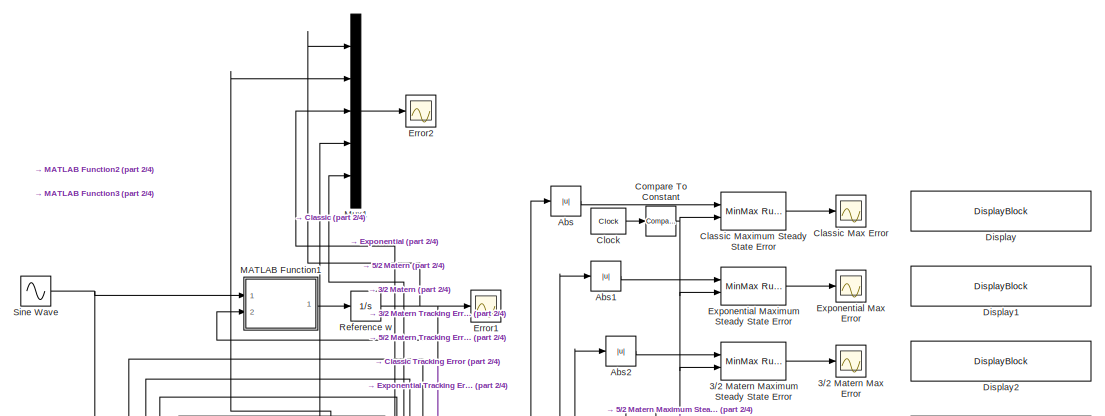
[diagram: root canvas - part 1/4, full width, top band]
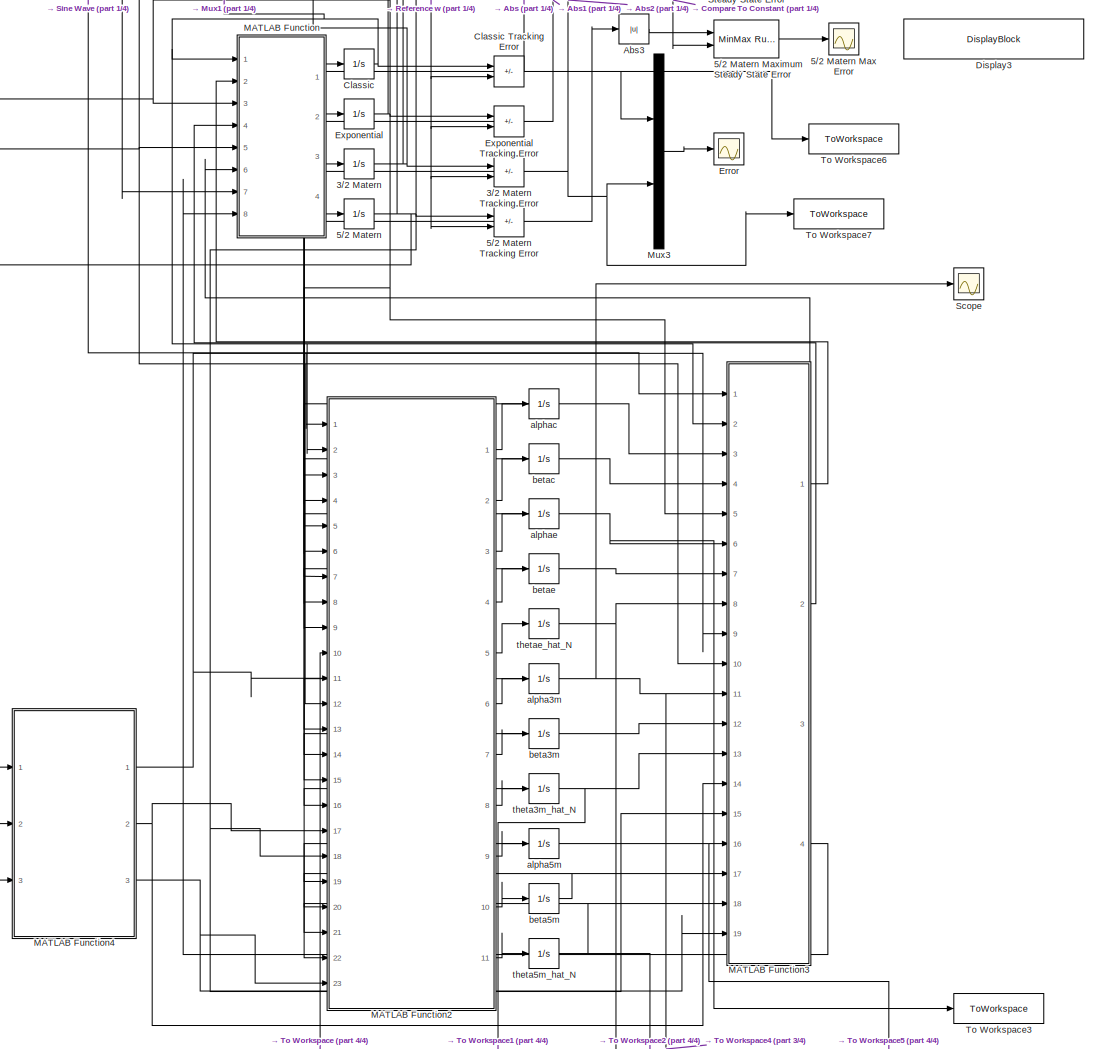
[diagram: root canvas - part 2/4, full width, middle band]
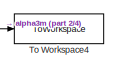
[diagram: root canvas - part 3/4, bottom right region]
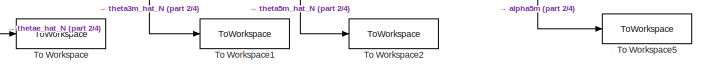
[diagram: root canvas - part 4/4, bottom center region]
MODEL slx_02746e379150
KIND model
CONFIG AbsTol = auto
CONFIG EnableMultiTasking = off
CONFIG FixedStep = auto
CONFIG MaxStep = auto
CONFIG MinStep = auto
CONFIG RelTol = 1e-3
CONFIG SampleTimeConstraint = Unconstrained
CONFIG SolverName = ode45
CONFIG StartTime = 0.0
CONFIG StopTime = 30
BLOCK [Integrator] 3//2 Matern
  InitialCondition = x0
  Ports = [1, 1]
BLOCK [Scope] 3//2 Matern Max Error
  Floating = off
  NumInputPorts = 1
  Ports = [1]
  ScopeSpecificationString = Simulink.scopes.TimeScopeBlockCfg('CurrentConfiguration', extmgr.ConfigurationSet(extmgr.Configuration('Core','General UI',true),extmgr.Configuration('Core','Source UI',true),extmgr.Configuration('Sources','WiredSimulink',true,'DataLoggingVariableName','ScopeData3'),extmgr.Configuration('Visuals','Time Domain',true,'SerializedDisplays',{struct('MinYLimReal','-0.10222','MaxYLimReal','0.91999','YLab...<+1436ch>
BLOCK [Reference] 3//2 Matern Maximum Steady State Error  REF=simulink/Math
Operations/MinMax
Running
Resettable
  Ports = [2, 1]
  SourceBlock = simulink/Math\nOperations/MinMax\nRunning\nResettable
  SourceProductBaseCode = SL
  SourceType = MinMax Running Resettable
BLOCK [Sum] 3//2 Matern Tracking Error
  IconShape = rectangular
  Inputs = +-
  Ports = [2, 1]
BLOCK [Integrator] 5//2 Matern
  InitialCondition = x0
  Ports = [1, 1]
BLOCK [Scope] 5//2 Matern Max Error
  Floating = off
  NumInputPorts = 1
  Ports = [1]
  ScopeSpecificationString = Simulink.scopes.TimeScopeBlockCfg('CurrentConfiguration', extmgr.ConfigurationSet(extmgr.Configuration('Core','General UI',true),extmgr.Configuration('Core','Source UI',true),extmgr.Configuration('Sources','WiredSimulink',true,'DataLoggingVariableName','ScopeData4'),extmgr.Configuration('Visuals','Time Domain',true,'SerializedDisplays',{struct('MinYLimReal','-0.12073','MaxYLimReal','1.08658','YLab...<+1436ch>
BLOCK [Reference] 5//2 Matern Maximum Steady State Error  REF=simulink/Math
Operations/MinMax
Running
Resettable
  Ports = [2, 1]
  SourceBlock = simulink/Math\nOperations/MinMax\nRunning\nResettable
  SourceProductBaseCode = SL
  SourceType = MinMax Running Resettable
BLOCK [Sum] 5//2 Matern Tracking Error
  IconShape = rectangular
  Inputs = +-
  Ports = [2, 1]
BLOCK [Abs] Abs
  SaturateOnIntegerOverflow = off
BLOCK [Abs] Abs1
  SaturateOnIntegerOverflow = off
BLOCK [Abs] Abs2
  SaturateOnIntegerOverflow = off
BLOCK [Abs] Abs3
  SaturateOnIntegerOverflow = off
BLOCK [Integrator] Classic
  InitialCondition = x0
  Ports = [1, 1]
BLOCK [Scope] Classic Max Error
  Floating = off
  NumInputPorts = 1
  Ports = [1]
  ScopeSpecificationString = Simulink.scopes.TimeScopeBlockCfg('CurrentConfiguration', extmgr.ConfigurationSet(extmgr.Configuration('Core','General UI',true),extmgr.Configuration('Core','Source UI',true),extmgr.Configuration('Sources','WiredSimulink',true,'DataLoggingVariableName','ScopeData1'),extmgr.Configuration('Visuals','Time Domain',true,'SerializedDisplays',{struct('MinYLimReal','-0.11328','MaxYLimReal','1.01951','YLab...<+1433ch>
BLOCK [Reference] Classic Maximum Steady State Error  REF=simulink/Math
Operations/MinMax
Running
Resettable
  Ports = [2, 1]
  SourceBlock = simulink/Math\nOperations/MinMax\nRunning\nResettable
  SourceProductBaseCode = SL
  SourceType = MinMax Running Resettable
BLOCK [Sum] Classic Tracking Error
  IconShape = rectangular
  Inputs = +-
  Ports = [2, 1]
BLOCK [Clock] Clock
  DisplayTime = on
BLOCK [Reference] Compare To Constant  REF=simulink/Logic and Bit
Operations/Compare
To Constant
  Ports = [1, 1]
  SourceBlock = simulink/Logic and Bit\nOperations/Compare\nTo Constant
  SourceProductBaseCode = SL
  SourceType = Compare To Constant
BLOCK [DisplayBlock] Display
  Format = short
  LabelPosition = Hide
  Transparency = 1
BLOCK [DisplayBlock] Display1
  Format = short
  LabelPosition = Hide
  Transparency = 1
BLOCK [DisplayBlock] Display2
  Format = short
  LabelPosition = Hide
  Transparency = 1
BLOCK [DisplayBlock] Display3
  Format = short
  LabelPosition = Hide
  Transparency = 1
BLOCK [Scope] Error
  Floating = off
  NumInputPorts = 1
  Ports = [1]
  ScopeSpecificationString = Simulink.scopes.TimeScopeBlockCfg('CurrentConfiguration', extmgr.ConfigurationSet(extmgr.Configuration('Core','General UI',true,'FigureColor',[1 1 1]),extmgr.Configuration('Core','Source UI',true),extmgr.Configuration('Sources','WiredSimulink',true,'DataLoggingVariableName','ScopeData1'),extmgr.Configuration('Visuals','Time Domain',true,'SerializedDisplays',{struct('MinYLimReal','-2.50653','MaxYLi...<+2006ch>
BLOCK [Scope] Error1
  Floating = off
  NumInputPorts = 1
  Ports = [1]
  ScopeSpecificationString = Simulink.scopes.TimeScopeBlockCfg('CurrentConfiguration', extmgr.ConfigurationSet(extmgr.Configuration('Core','General UI',true,'FigureColor',[1 1 1]),extmgr.Configuration('Core','Source UI',true),extmgr.Configuration('Sources','WiredSimulink',true,'DataLoggingVariableName','ScopeData1'),extmgr.Configuration('Visuals','Time Domain',true,'SerializedDisplays',{struct('MinYLimReal','-12.43782','MaxYL...<+1970ch>
BLOCK [Scope] Error2
  Floating = off
  NumInputPorts = 1
  Ports = [1]
  ScopeSpecificationString = Simulink.scopes.TimeScopeBlockCfg('CurrentConfiguration', extmgr.ConfigurationSet(extmgr.Configuration('Core','General UI',true,'FigureColor',[1 1 1]),extmgr.Configuration('Core','Source UI',true),extmgr.Configuration('Sources','WiredSimulink',true,'DataLoggingVariableName','ScopeData1'),extmgr.Configuration('Visuals','Time Domain',true,'SerializedDisplays',{struct('MinYLimReal','-12.94159','MaxYL...<+2186ch>
BLOCK [Integrator] Exponential
  InitialCondition = x0
  Ports = [1, 1]
BLOCK [Scope] Exponential Max Error
  Floating = off
  NumInputPorts = 1
  Ports = [1]
  ScopeSpecificationString = Simulink.scopes.TimeScopeBlockCfg('CurrentConfiguration', extmgr.ConfigurationSet(extmgr.Configuration('Core','General UI',true),extmgr.Configuration('Core','Source UI',true),extmgr.Configuration('Sources','WiredSimulink',true,'DataLoggingVariableName','ScopeData2'),extmgr.Configuration('Visuals','Time Domain',true,'SerializedDisplays',{struct('MinYLimReal','-0.04849','MaxYLimReal','0.4364','YLabe...<+1433ch>
BLOCK [Reference] Exponential Maximum Steady State Error  REF=simulink/Math
Operations/MinMax
Running
Resettable
  Ports = [2, 1]
  SourceBlock = simulink/Math\nOperations/MinMax\nRunning\nResettable
  SourceProductBaseCode = SL
  SourceType = MinMax Running Resettable
BLOCK [Sum] Exponential Tracking Error
  IconShape = rectangular
  Inputs = +-
  Ports = [2, 1]
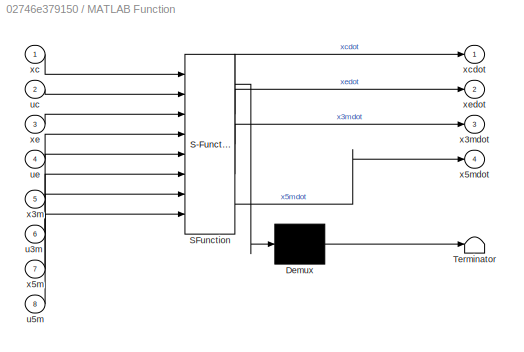
BLOCK [SubSystem] MATLAB Function
  ErrorFcn = Stateflow.Translate.translate
  PermitHierarchicalResolution = ExplicitOnly
  Ports = [8, 4]
  RequestExecContextInheritance = off
  SFBlockType = MATLAB Function
  TreatAsAtomicUnit = on
BLOCK [Demux] MATLAB Function/ Demux 
  Outputs = 1
  Ports = [1, 1]
BLOCK [S-Function] MATLAB Function/ SFunction 
  EnableBusSupport = on
  FunctionName = sf_sfun
  Parameters = astar,bstar
  PortCounts = [8 5]
  Ports = [8, 5]
  SFcnIsStateOwnerBlock = off
  SFunctionDeploymentMode = off
  Tag = Stateflow S-Function 2
BLOCK [Terminator] MATLAB Function/ Terminator 
BLOCK [Inport] MATLAB Function/u3m
  Port = 6
BLOCK [Inport] MATLAB Function/u5m
  Port = 8
BLOCK [Inport] MATLAB Function/uc
  Port = 2
BLOCK [Inport] MATLAB Function/ue
  Port = 4
BLOCK [Inport] MATLAB Function/x3m
  Port = 5
BLOCK [Outport] MATLAB Function/x3mdot
  Port = 3
BLOCK [Inport] MATLAB Function/x5m
  Port = 7
BLOCK [Outport] MATLAB Function/x5mdot
  Port = 4
BLOCK [Inport] MATLAB Function/xc
BLOCK [Outport] MATLAB Function/xcdot
BLOCK [Inport] MATLAB Function/xe
  Port = 3
BLOCK [Outport] MATLAB Function/xedot
  Port = 2
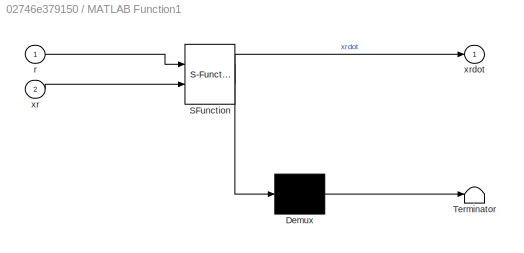
BLOCK [SubSystem] MATLAB Function1
  ErrorFcn = Stateflow.Translate.translate
  PermitHierarchicalResolution = ExplicitOnly
  Ports = [2, 1]
  RequestExecContextInheritance = off
  SFBlockType = MATLAB Function
  TreatAsAtomicUnit = on
BLOCK [Demux] MATLAB Function1/ Demux 
  Outputs = 1
  Ports = [1, 1]
BLOCK [S-Function] MATLAB Function1/ SFunction 
  EnableBusSupport = on
  FunctionName = sf_sfun
  Parameters = ar,br
  PortCounts = [2 2]
  Ports = [2, 2]
  SFcnIsStateOwnerBlock = off
  SFunctionDeploymentMode = off
  Tag = Stateflow S-Function 1
BLOCK [Terminator] MATLAB Function1/ Terminator 
BLOCK [Inport] MATLAB Function1/r
BLOCK [Inport] MATLAB Function1/xr
  Port = 2
BLOCK [Outport] MATLAB Function1/xrdot
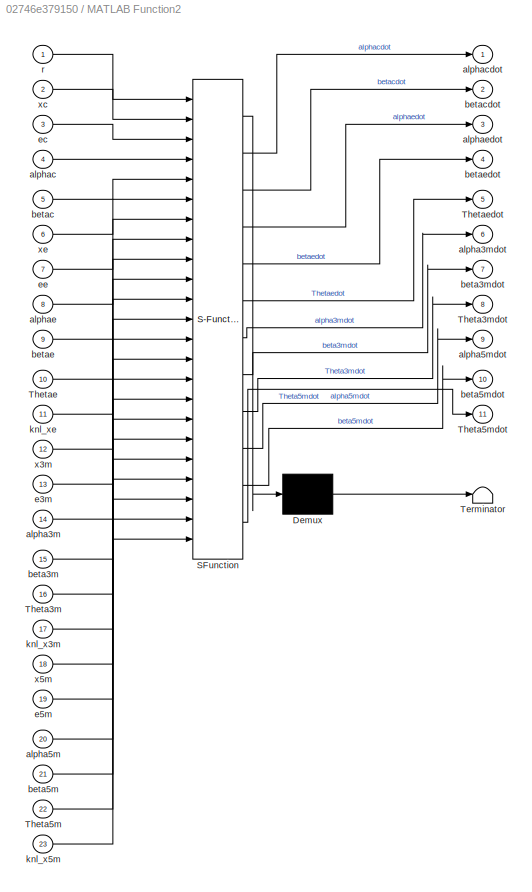
BLOCK [SubSystem] MATLAB Function2
  ErrorFcn = Stateflow.Translate.translate
  PermitHierarchicalResolution = ExplicitOnly
  Ports = [23, 11]
  RequestExecContextInheritance = off
  SFBlockType = MATLAB Function
  TreatAsAtomicUnit = on
BLOCK [Demux] MATLAB Function2/ Demux 
  Outputs = 1
  Ports = [1, 1]
BLOCK [S-Function] MATLAB Function2/ SFunction 
  EnableBusSupport = on
  FunctionName = sf_sfun
  Parameters = epsilon3m,epsilon5m,epsilonc,epsilone,ga,gb,gf,inv_k_xi_xi3m,inv_k_xi_xi5m,inv_k_xi_xie,sigma
  PortCounts = [23 12]
  Ports = [23, 12]
  SFcnIsStateOwnerBlock = off
  SFunctionDeploymentMode = off
  Tag = Stateflow S-Function 3
BLOCK [Terminator] MATLAB Function2/ Terminator 
BLOCK [Inport] MATLAB Function2/Theta3m
  Port = 16
BLOCK [Outport] MATLAB Function2/Theta3mdot
  Port = 8
BLOCK [Inport] MATLAB Function2/Theta5m
  Port = 22
BLOCK [Outport] MATLAB Function2/Theta5mdot
  Port = 11
BLOCK [Inport] MATLAB Function2/Thetae
  Port = 10
BLOCK [Outport] MATLAB Function2/Thetaedot
  Port = 5
BLOCK [Inport] MATLAB Function2/alpha3m
  Port = 14
BLOCK [Outport] MATLAB Function2/alpha3mdot
  Port = 6
BLOCK [Inport] MATLAB Function2/alpha5m
  Port = 20
BLOCK [Outport] MATLAB Function2/alpha5mdot
  Port = 9
BLOCK [Inport] MATLAB Function2/alphac
  Port = 4
BLOCK [Outport] MATLAB Function2/alphacdot
BLOCK [Inport] MATLAB Function2/alphae
  Port = 8
BLOCK [Outport] MATLAB Function2/alphaedot
  Port = 3
BLOCK [Inport] MATLAB Function2/beta3m
  Port = 15
BLOCK [Outport] MATLAB Function2/beta3mdot
  Port = 7
BLOCK [Inport] MATLAB Function2/beta5m
  Port = 21
BLOCK [Outport] MATLAB Function2/beta5mdot
  Port = 10
BLOCK [Inport] MATLAB Function2/betac
  Port = 5
BLOCK [Outport] MATLAB Function2/betacdot
  Port = 2
BLOCK [Inport] MATLAB Function2/betae
  Port = 9
BLOCK [Outport] MATLAB Function2/betaedot
  Port = 4
BLOCK [Inport] MATLAB Function2/e3m
  Port = 13
BLOCK [Inport] MATLAB Function2/e5m
  Port = 19
BLOCK [Inport] MATLAB Function2/ec
  Port = 3
BLOCK [Inport] MATLAB Function2/ee
  Port = 7
BLOCK [Inport] MATLAB Function2/knl_x3m
  Port = 17
BLOCK [Inport] MATLAB Function2/knl_x5m
  Port = 23
BLOCK [Inport] MATLAB Function2/knl_xe
  Port = 11
BLOCK [Inport] MATLAB Function2/r
BLOCK [Inport] MATLAB Function2/x3m
  Port = 12
BLOCK [Inport] MATLAB Function2/x5m
  Port = 18
BLOCK [Inport] MATLAB Function2/xc
  Port = 2
BLOCK [Inport] MATLAB Function2/xe
  Port = 6
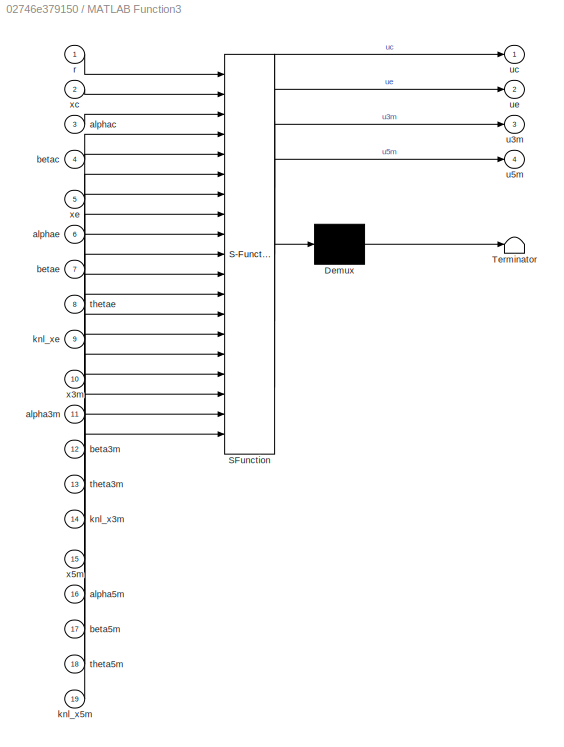
BLOCK [SubSystem] MATLAB Function3
  ErrorFcn = Stateflow.Translate.translate
  PermitHierarchicalResolution = ExplicitOnly
  Ports = [19, 4]
  RequestExecContextInheritance = off
  SFBlockType = MATLAB Function
  TreatAsAtomicUnit = on
BLOCK [Demux] MATLAB Function3/ Demux 
  Outputs = 1
  Ports = [1, 1]
BLOCK [S-Function] MATLAB Function3/ SFunction 
  EnableBusSupport = on
  FunctionName = sf_sfun
  PortCounts = [19 5]
  Ports = [19, 5]
  SFcnIsStateOwnerBlock = off
  SFunctionDeploymentMode = off
  Tag = Stateflow S-Function 4
BLOCK [Terminator] MATLAB Function3/ Terminator 
BLOCK [Inport] MATLAB Function3/alpha3m
  Port = 11
BLOCK [Inport] MATLAB Function3/alpha5m
  Port = 16
BLOCK [Inport] MATLAB Function3/alphac
  Port = 3
BLOCK [Inport] MATLAB Function3/alphae
  Port = 6
BLOCK [Inport] MATLAB Function3/beta3m
  Port = 12
BLOCK [Inport] MATLAB Function3/beta5m
  Port = 17
BLOCK [Inport] MATLAB Function3/betac
  Port = 4
BLOCK [Inport] MATLAB Function3/betae
  Port = 7
BLOCK [Inport] MATLAB Function3/knl_x3m
  Port = 14
BLOCK [Inport] MATLAB Function3/knl_x5m
  Port = 19
BLOCK [Inport] MATLAB Function3/knl_xe
  Port = 9
BLOCK [Inport] MATLAB Function3/r
BLOCK [Inport] MATLAB Function3/theta3m
  Port = 13
BLOCK [Inport] MATLAB Function3/theta5m
  Port = 18
BLOCK [Inport] MATLAB Function3/thetae
  Port = 8
BLOCK [Outport] MATLAB Function3/u3m
  Port = 3
BLOCK [Outport] MATLAB Function3/u5m
  Port = 4
BLOCK [Outport] MATLAB Function3/uc
BLOCK [Outport] MATLAB Function3/ue
  Port = 2
BLOCK [Inport] MATLAB Function3/x3m
  Port = 10
BLOCK [Inport] MATLAB Function3/x5m
  Port = 15
BLOCK [Inport] MATLAB Function3/xc
  Port = 2
BLOCK [Inport] MATLAB Function3/xe
  Port = 5
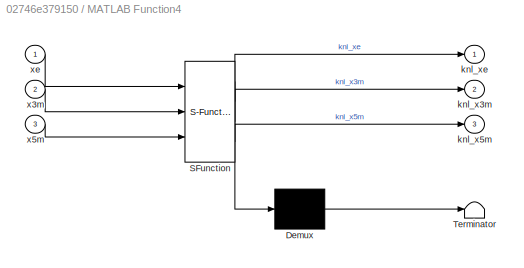
BLOCK [SubSystem] MATLAB Function4
  ErrorFcn = Stateflow.Translate.translate
  PermitHierarchicalResolution = ExplicitOnly
  Ports = [3, 3]
  RequestExecContextInheritance = off
  SFBlockType = MATLAB Function
  TreatAsAtomicUnit = on
BLOCK [Demux] MATLAB Function4/ Demux 
  Outputs = 1
  Ports = [1, 1]
BLOCK [S-Function] MATLAB Function4/ SFunction 
  EnableBusSupport = on
  FunctionName = sf_sfun
  Parameters = basiscenter,hype,l,sig
  PortCounts = [3 4]
  Ports = [3, 4]
  SFcnIsStateOwnerBlock = off
  SFunctionDeploymentMode = off
  Tag = Stateflow S-Function 5
BLOCK [Terminator] MATLAB Function4/ Terminator 
BLOCK [Outport] MATLAB Function4/knl_x3m
  Port = 2
BLOCK [Outport] MATLAB Function4/knl_x5m
  Port = 3
BLOCK [Outport] MATLAB Function4/knl_xe
BLOCK [Inport] MATLAB Function4/x3m
  Port = 2
BLOCK [Inport] MATLAB Function4/x5m
  Port = 3
BLOCK [Inport] MATLAB Function4/xe
BLOCK [Mux] Mux1
  DisplayOption = bar
  Inputs = 5
  Ports = [5, 1]
BLOCK [Mux] Mux3
  DisplayOption = bar
  Inputs = 2
  Ports = [2, 1]
BLOCK [Integrator] Reference w
  InitialCondition = xr0
  Ports = [1, 1]
BLOCK [Scope] Scope
  Floating = off
  NumInputPorts = 1
  Ports = [1]
  ScopeSpecificationString = Simulink.scopes.TimeScopeBlockCfg('CurrentConfiguration', extmgr.ConfigurationSet(extmgr.Configuration('Core','General UI',true),extmgr.Configuration('Core','Source UI',true),extmgr.Configuration('Sources','WiredSimulink',true,'DataLoggingVariableName','ScopeData1'),extmgr.Configuration('Visuals','Time Domain',true,'SerializedDisplays',{struct('MinYLimReal','-7.07838','MaxYLimReal','0.84417','YLab...<+1366ch>
BLOCK [Sin] Sine Wave
  Amplitude = 10
  Frequency = 2
  Ports = [0, 1]
  SampleTime = 0
BLOCK [ToWorkspace] To Workspace
  FixptAsFi = on
  MaxDataPoints = inf
  Ports = [1]
  SampleTime = -1
  SaveFormat = Timeseries
  VariableName = Theta_E
BLOCK [ToWorkspace] To Workspace1
  FixptAsFi = on
  MaxDataPoints = inf
  Ports = [1]
  SampleTime = -1
  SaveFormat = Timeseries
  VariableName = Theta_3m
BLOCK [ToWorkspace] To Workspace2
  FixptAsFi = on
  MaxDataPoints = inf
  Ports = [1]
  SampleTime = -1
  SaveFormat = Timeseries
  VariableName = Theta_5m
BLOCK [ToWorkspace] To Workspace3
  FixptAsFi = on
  MaxDataPoints = inf
  Ports = [1]
  SampleTime = -1
  SaveFormat = Timeseries
  VariableName = AlphaE
BLOCK [ToWorkspace] To Workspace4
  FixptAsFi = on
  MaxDataPoints = inf
  Ports = [1]
  SampleTime = -1
  SaveFormat = Timeseries
  VariableName = Alpha3m
BLOCK [ToWorkspace] To Workspace5
  FixptAsFi = on
  MaxDataPoints = inf
  Ports = [1]
  SampleTime = -1
  SaveFormat = Timeseries
  VariableName = Alpha5m
BLOCK [ToWorkspace] To Workspace6
  FixptAsFi = on
  MaxDataPoints = inf
  Ports = [1]
  SampleTime = -1
  SaveFormat = Timeseries
  VariableName = Err_C
BLOCK [ToWorkspace] To Workspace7
  FixptAsFi = on
  MaxDataPoints = inf
  Ports = [1]
  SampleTime = -1
  SaveFormat = Timeseries
  VariableName = Err_3m
BLOCK [Integrator] alpha3m
  InitialCondition = alpha0
  Ports = [1, 1]
BLOCK [Integrator] alpha5m
  InitialCondition = alpha0
  Ports = [1, 1]
BLOCK [Integrator] alphac
  InitialCondition = alpha0
  Ports = [1, 1]
BLOCK [Integrator] alphae
  InitialCondition = alpha0
  Ports = [1, 1]
BLOCK [Integrator] beta3m
  InitialCondition = beta0
  Ports = [1, 1]
BLOCK [Integrator] beta5m
  InitialCondition = beta0
  Ports = [1, 1]
BLOCK [Integrator] betac
  InitialCondition = beta0
  Ports = [1, 1]
BLOCK [Integrator] betae
  InitialCondition = beta0
  Ports = [1, 1]
BLOCK [Integrator] theta3m_hat_N
  Ports = [1, 1]
BLOCK [Integrator] theta5m_hat_N
  Ports = [1, 1]
BLOCK [Integrator] thetae_hat_N
  Ports = [1, 1]
LINE 3//2 Matern Maximum Steady State Error:1 -> 3//2 Matern Max Error:1
NET 3//2 Matern Tracking Error:1 -> Abs2:1, MATLAB Function2:13, Mux3:2, To Workspace7:1
NET 3//2 Matern:1 -> 3//2 Matern Tracking Error:1, MATLAB Function2:12, MATLAB Function3:10, MATLAB Function4:2, MATLAB Function:5, Mux1:4
LINE 5//2 Matern Maximum Steady State Error:1 -> 5//2 Matern Max Error:1
NET 5//2 Matern Tracking Error:1 -> Abs3:1, MATLAB Function2:19
NET 5//2 Matern:1 -> 5//2 Matern Tracking Error:1, MATLAB Function2:18, MATLAB Function3:15, MATLAB Function4:3, MATLAB Function:7, Mux1:5
LINE Abs1:1 -> Exponential Maximum Steady State Error:1
LINE Abs2:1 -> 3//2 Matern Maximum Steady State Error:1
LINE Abs3:1 -> 5//2 Matern Maximum Steady State Error:1
LINE Abs:1 -> Classic Maximum Steady State Error:1
LINE Classic Maximum Steady State Error:1 -> Classic Max Error:1
NET Classic Tracking Error:1 -> Abs:1, MATLAB Function2:3, Mux3:1, To Workspace6:1
NET Classic:1 -> Classic Tracking Error:1, MATLAB Function2:2, MATLAB Function3:2, MATLAB Function:1, Mux1:2
LINE Clock:1 -> Compare To Constant:1
NET Compare To Constant:1 -> 3//2 Matern Maximum Steady State Error:2, 5//2 Matern Maximum Steady State Error:2, Classic Maximum Steady State Error:2, Exponential Maximum Steady State Error:2
LINE Exponential Maximum Steady State Error:1 -> Exponential Max Error:1
NET Exponential Tracking Error:1 -> Abs1:1, MATLAB Function2:7
NET Exponential:1 -> Exponential Tracking Error:1, MATLAB Function2:6, MATLAB Function3:5, MATLAB Function4:1, MATLAB Function:3, Mux1:3
LINE MATLAB Function1:1 -> Reference w:1
LINE MATLAB Function2:1 -> alphac:1
LINE MATLAB Function2:10 -> beta5m:1
LINE MATLAB Function2:11 -> theta5m_hat_N:1
LINE MATLAB Function2:2 -> betac:1
LINE MATLAB Function2:3 -> alphae:1
LINE MATLAB Function2:4 -> betae:1
LINE MATLAB Function2:5 -> thetae_hat_N:1
LINE MATLAB Function2:6 -> alpha3m:1
LINE MATLAB Function2:7 -> beta3m:1
LINE MATLAB Function2:8 -> theta3m_hat_N:1
LINE MATLAB Function2:9 -> alpha5m:1
LINE MATLAB Function3:1 -> MATLAB Function:2
LINE MATLAB Function3:2 -> MATLAB Function:4
LINE MATLAB Function3:3 -> MATLAB Function:6
LINE MATLAB Function3:4 -> MATLAB Function:8
NET MATLAB Function4:1 -> MATLAB Function2:11, MATLAB Function3:9
NET MATLAB Function4:2 -> MATLAB Function2:17, MATLAB Function3:14
NET MATLAB Function4:3 -> MATLAB Function2:23, MATLAB Function3:19
LINE MATLAB Function:1 -> Classic:1
LINE MATLAB Function:2 -> Exponential:1
LINE MATLAB Function:3 -> 3//2 Matern:1
LINE MATLAB Function:4 -> 5//2 Matern:1
LINE Mux1:1 -> Error2:1
LINE Mux3:1 -> Error:1
NET Reference w:1 -> 3//2 Matern Tracking Error:2, 5//2 Matern Tracking Error:2, Classic Tracking Error:2, Error1:1, Exponential Tracking Error:2, MATLAB Function1:2, Mux1:1
NET Sine Wave:1 -> MATLAB Function1:1, MATLAB Function2:1, MATLAB Function3:1
NET alpha3m:1 -> MATLAB Function2:14, MATLAB Function3:11, Scope:1, To Workspace4:1
NET alpha5m:1 -> MATLAB Function2:20, MATLAB Function3:16, To Workspace5:1
NET alphac:1 -> MATLAB Function2:4, MATLAB Function3:3
NET alphae:1 -> MATLAB Function2:8, MATLAB Function3:6, To Workspace3:1
NET beta3m:1 -> MATLAB Function2:15, MATLAB Function3:12
NET beta5m:1 -> MATLAB Function2:21, MATLAB Function3:17
NET betac:1 -> MATLAB Function2:5, MATLAB Function3:4
NET betae:1 -> MATLAB Function2:9, MATLAB Function3:7
NET theta3m_hat_N:1 -> MATLAB Function2:16, MATLAB Function3:13, To Workspace1:1
NET theta5m_hat_N:1 -> MATLAB Function2:22, MATLAB Function3:18, To Workspace2:1
NET thetae_hat_N:1 -> MATLAB Function2:10, MATLAB Function3:8, To Workspace:1
note: NET lines group one-source signal fan-out (src -> all destinations, sorted); 1:1 wires keep LINE
CHART MATLAB Function3 states=1 transitions=1
  STATE_LABEL 'eML_blk_kernel()'
  STATE_LABEL "SCRIPT:\nfunction [uc, ue, u3m, u5m]= controller(r, xc,alphac,betac,...\n    xe,alphae,betae, thetae,knl_xe,x3m,alpha3m,beta3m, theta3m,knl_x3m...\n    , x5m,alpha5m,beta5m, theta5m,knl_x5m)\n\n% Classic\nuc = alphac*xc+betac*r;\n% Exponential\n%ue = alphae*xe+betae*r-thetae'*knl_xe;\nue = betae*r-thetae'*knl_xe;\n% Matern 3/2\n%u3m = alpha3m*x3m+beta3m*r-theta3m'*knl_x3m;\nu3m = beta3m*r-theta3m'*knl_x3m;\n% ...<+89ch>"
CHART MATLAB Function4 states=1 transitions=1
  STATE_LABEL 'eML_blk_kernel()'
  STATE_LABEL 'SCRIPT:\nfunction [knl_xe,knl_x3m,knl_x5m] = Knl_Eval(...\n    xe,x3m,x5m,basiscenter,hype,sig,l)\n\nknlfune=@(x,bsc) exp(-hype*(x-bsc).^2);\nknlfun3m=@(x,bsc) sig^2.*(1+sqrt(3)./l.*abs(x-bsc)).*exp(-sqrt(3).*abs(x-bsc)./l);\nknlfun5m=@(x,bsc) sig^2.*(1+sqrt(5)/l.*abs(x-bsc)+5/(3*l^2).*abs(x-bsc).^2).*exp(-sqrt(5).*abs(x-bsc)./l);\nknl_xe=zeros(length(basiscenter),1);\nknl_x3m=zeros(length(basiscenter),1)...<+269ch>'
CHART MATLAB Function1 states=1 transitions=1
  STATE_LABEL 'eML_blk_kernel()'
  STATE_LABEL 'SCRIPT:\nfunction xrdot = reference(r,xr,ar, br)\n\nxrdot = ar*xr+br*r;\n'
CHART MATLAB Function states=1 transitions=1
  STATE_LABEL 'eML_blk_kernel()'
  STATE_LABEL 'SCRIPT:\nfunction [xcdot,xedot,x3mdot,x5mdot] = plant(xc,uc,xe,ue,x3m,u3m,x5m,u5m,astar, bstar)\n\nxcdot = astar*xc+bstar*(uc+10*tanh(xc));\nxedot = astar*xe+bstar*(ue+10*tanh(xe));\nx3mdot = astar*x3m+bstar*(u3m+10*tanh(x3m));\nx5mdot = astar*x5m+bstar*(u5m+10*tanh(x5m));\n'
CHART MATLAB Function2 states=1 transitions=1
  STATE_LABEL 'eML_blk_kernel()'
  STATE_LABEL 'SCRIPT:\nfunction [alphacdot,betacdot,alphaedot,betaedot,Thetaedot...\n    ,alpha3mdot,beta3mdot,Theta3mdot,alpha5mdot,beta5mdot,Theta5mdot]...\n    = evo_law(ga, gb, gf, sigma, r, xc, ec, alphac, betac, xe, ee, alphae, betae,Thetae,...\n    knl_xe,x3m, e3m,alpha3m, beta3m,Theta3m, knl_x3m,...\n    x5m, e5m, alpha5m, beta5m,Theta5m, knl_x5m, inv_k_xi_xie, inv_k_xi_xi3m, inv_k_xi_xi5m,...\n    epsilonc, ...<+804ch>'
CHART  states=0 transitions=0
CHART  states=0 transitions=0
CHART  states=0 transitions=0
CHART  states=0 transitions=0
CHART  states=0 transitions=0
